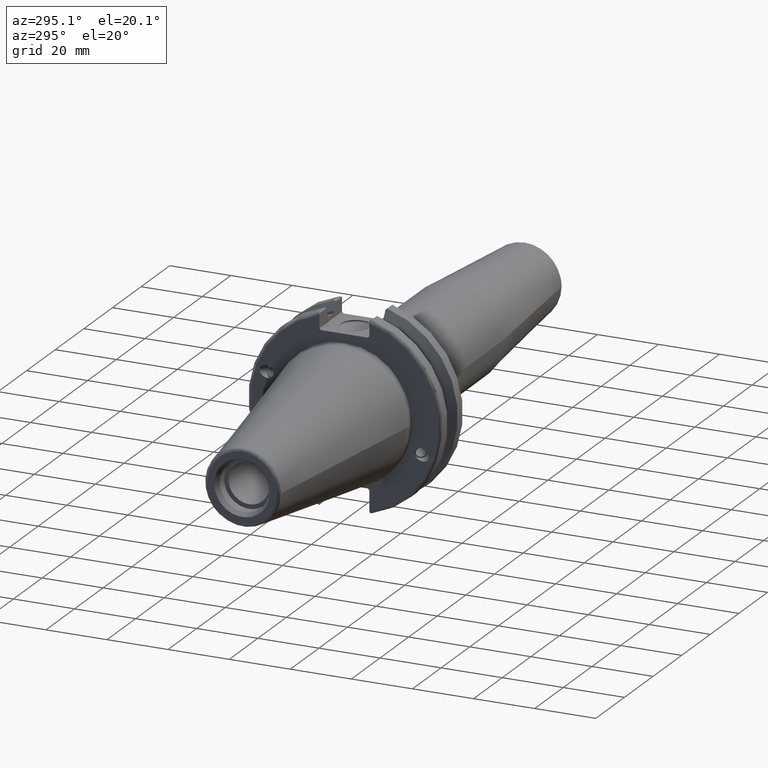
[diagram: clean part render]
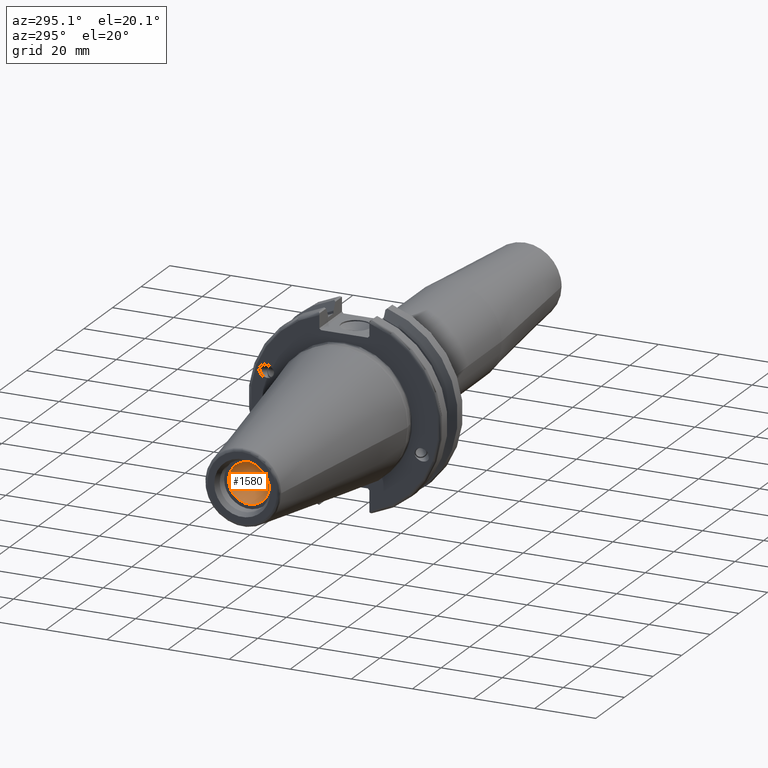
[diagram: same view with one face highlighted and labeled with its STEP entity id]
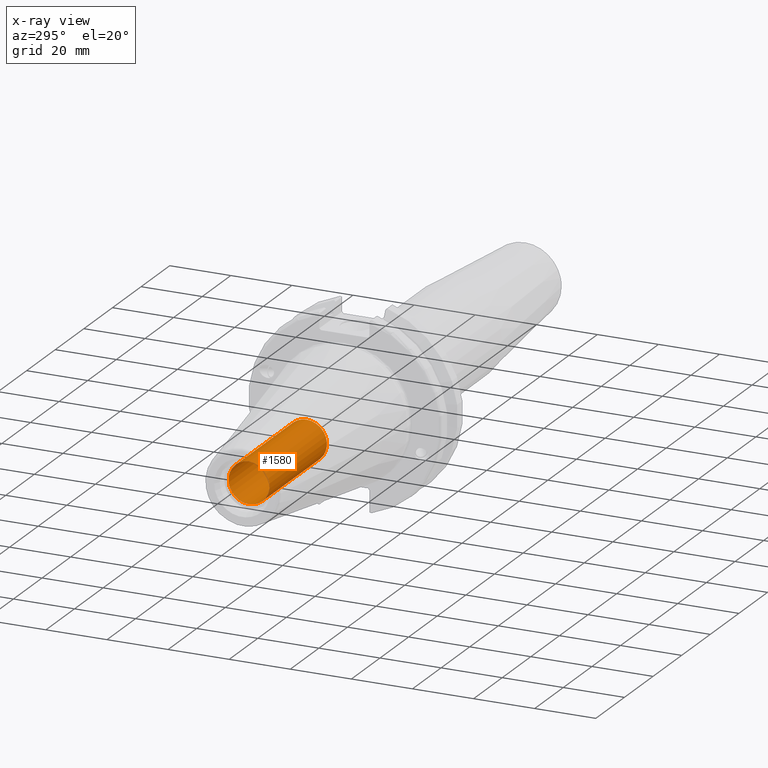
[diagram: x-ray of the same camera — body ghosted, the highlighted face saturated]
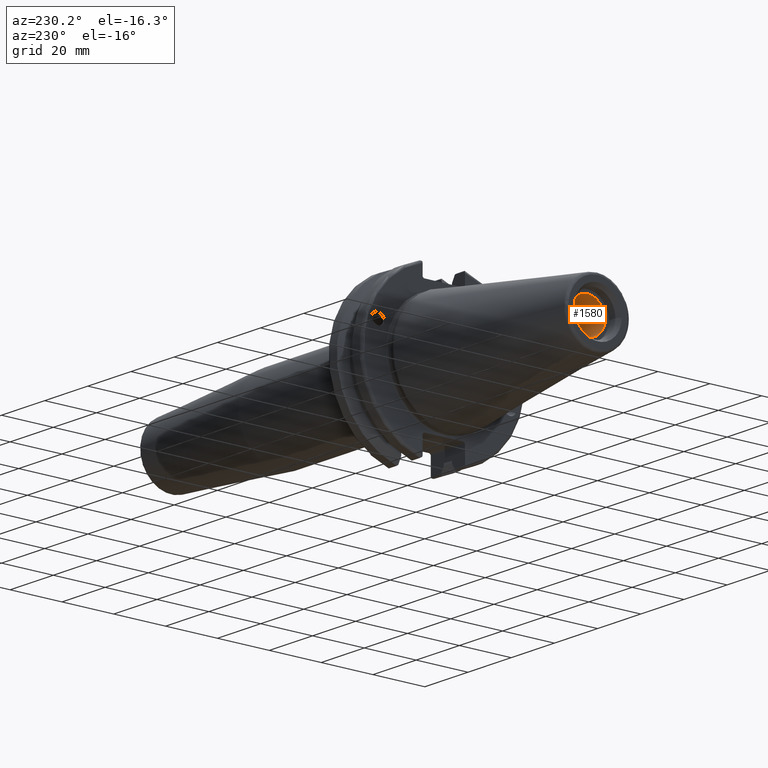
[diagram: same view with one face highlighted and labeled with its STEP entity id]
A machine part, auxiliary view. The second image highlights one B-rep face of the part: STEP entity #1580.
The next image is the same camera in x-ray: the body ghosted, the highlighted face saturated — about 1% of this face is hidden behind the body in this view.
A second angle (auxiliary view) of the same face is appended — the face is thin or edge-on in the first view.
In plain terms, the highlighted cylindrical surface (bore or boss wall) has radius 6.6929 mm, axis along (-1, 0, 0).
Its self-contained STEP definition (entity closure, byte-faithful):
#165=CYLINDRICAL_SURFACE('',#1759,6.6929);
#219=FACE_OUTER_BOUND('',#322,.T.);
#322=EDGE_LOOP('',(#1273,#1274,#1275,#1276));
#425=LINE('',#2786,#523);
#523=VECTOR('',#2110,6.6929);
#615=CIRCLE('',#1758,6.6929);
#616=CIRCLE('',#1760,6.6929);
#746=VERTEX_POINT('',#2780);
#747=VERTEX_POINT('',#2784);
#939=EDGE_CURVE('',#746,#746,#615,.T.);
#941=EDGE_CURVE('',#747,#747,#616,.T.);
#942=EDGE_CURVE('',#747,#746,#425,.T.);
#1273=ORIENTED_EDGE('',*,*,#941,.F.);
#1274=ORIENTED_EDGE('',*,*,#942,.T.);
#1275=ORIENTED_EDGE('',*,*,#939,.F.);
#1276=ORIENTED_EDGE('',*,*,#942,.F.);
#1580=ADVANCED_FACE('',(#219),#165,.F.);
#1758=AXIS2_PLACEMENT_3D('',#2781,#2103,#2104);
#1759=AXIS2_PLACEMENT_3D('',#2783,#2106,#2107);
#1760=AXIS2_PLACEMENT_3D('',#2785,#2108,#2109);
#2103=DIRECTION('center_axis',(-1.,0.,0.));
#2104=DIRECTION('ref_axis',(0.,0.,1.));
#2106=DIRECTION('center_axis',(-1.,0.,0.));
#2107=DIRECTION('ref_axis',(0.,0.,1.));
#2108=DIRECTION('center_axis',(1.,0.,0.));
#2109=DIRECTION('ref_axis',(0.,0.,1.));
#2110=DIRECTION('',(1.,0.,0.));
#2780=CARTESIAN_POINT('',(-23.25,-8.19643856201332E-16,-6.6929));
#2781=CARTESIAN_POINT('Origin',(-23.25,0.,0.));
#2783=CARTESIAN_POINT('Origin',(-45.75,0.,0.));
#2784=CARTESIAN_POINT('',(-63.45,8.19643856201332E-16,-6.6929));
#2785=CARTESIAN_POINT('Origin',(-63.45,0.,0.));
#2786=CARTESIAN_POINT('',(-45.75,-8.19643856201332E-16,-6.6929));